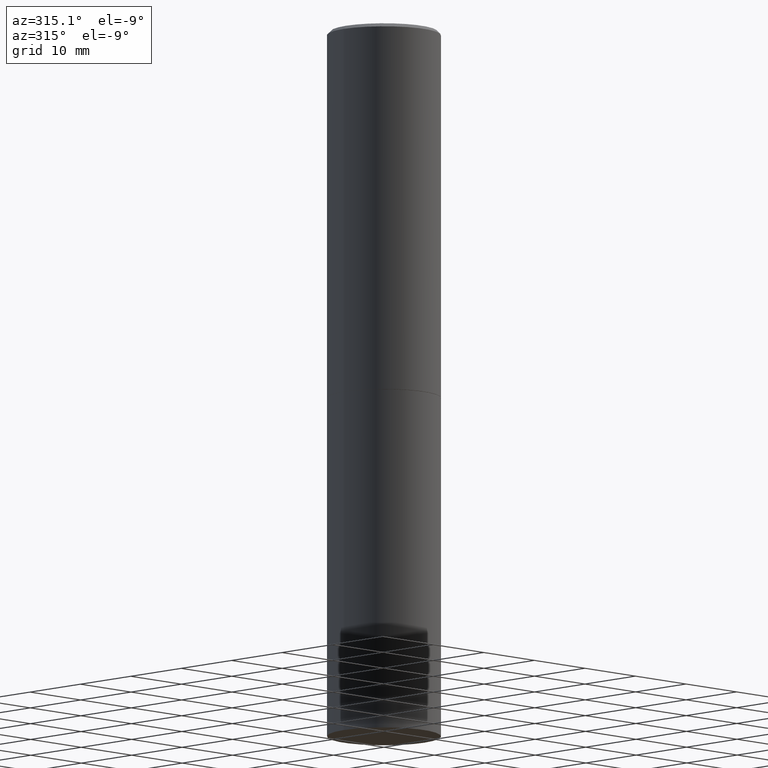
[diagram: clean part render]
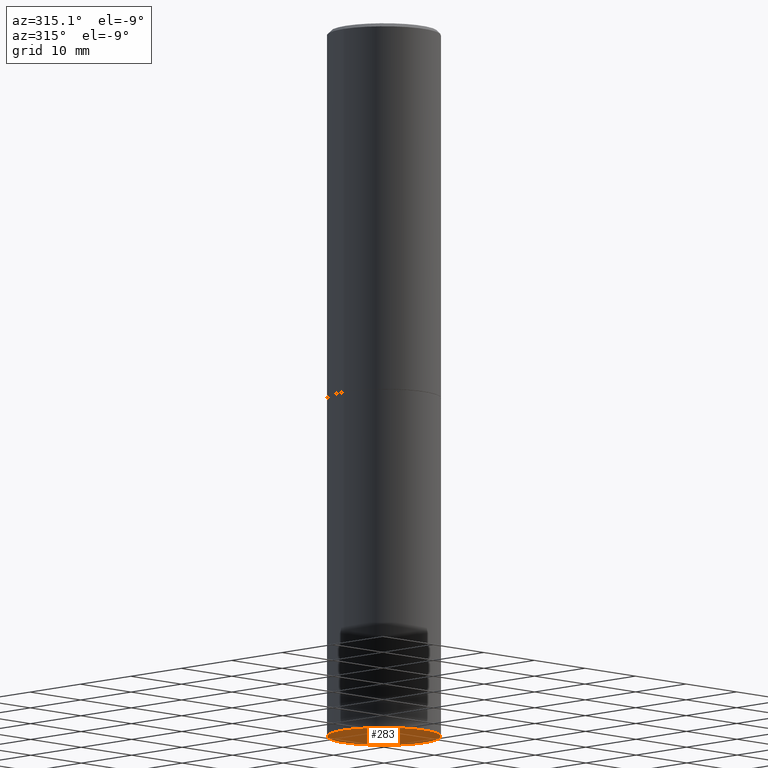
[diagram: same view with one face highlighted and labeled with its STEP entity id]
A machine part, auxiliary view. The second image highlights one B-rep face of the part: STEP entity #283.
In plain terms, the highlighted planar face has unit normal (0, -0, -1).
Its self-contained STEP definition (entity closure, byte-faithful):
#21 = ORIENTED_EDGE ( 'NONE', *, *, #293, .F. ) ;
#36 = DIRECTION ( 'NONE',  ( 2.438088387897960049E-29, -3.491481338843145188E-15, -1.000000000000000000 ) ) ;
#63 = FACE_OUTER_BOUND ( 'NONE', #140, .T. ) ;
#67 = VERTEX_POINT ( 'NONE', #85 ) ;
#85 = CARTESIAN_POINT ( 'NONE',  ( -0.3149500000000000077, -8.209006967676138246E-15, -3.937000000000000277 ) ) ;
#102 = CIRCLE ( 'NONE', #269, 0.3149500000000000077 ) ;
#135 = DIRECTION ( 'NONE',  ( -2.445468806185136597E-29, 3.491481338843145583E-15, 1.000000000000000000 ) ) ;
#140 = EDGE_LOOP ( 'NONE', ( #202, #21 ) ) ;
#141 = EDGE_CURVE ( 'NONE', #266, #67, #212, .T. ) ;
#149 = DIRECTION ( 'NONE',  ( -2.445468806185136597E-29, 3.491481338843145583E-15, 1.000000000000000000 ) ) ;
#171 = DIRECTION ( 'NONE',  ( -1.000000000000000000, 6.982962677686265922E-15, -4.876176775795935793E-29 ) ) ;
#172 = CARTESIAN_POINT ( 'NONE',  ( 0.3149500000000000077, -1.594524612636275486E-14, -3.937000000000000277 ) ) ;
#180 = AXIS2_PLACEMENT_3D ( 'NONE', #258, #36, #171 ) ;
#202 = ORIENTED_EDGE ( 'NONE', *, *, #141, .F. ) ;
#209 = CARTESIAN_POINT ( 'NONE',  ( 9.627810689950883669E-29, -1.374596203102546341E-14, -3.937000000000000277 ) ) ;
#212 = CIRCLE ( 'NONE', #239, 0.3149500000000000077 ) ;
#239 = AXIS2_PLACEMENT_3D ( 'NONE', #302, #135, #350 ) ;
#255 = PLANE ( 'NONE',  #180 ) ;
#258 = CARTESIAN_POINT ( 'NONE',  ( 2.199284095337385323E-15, 0.3149499999999862965, -3.937000000000001165 ) ) ;
#266 = VERTEX_POINT ( 'NONE', #172 ) ;
#269 = AXIS2_PLACEMENT_3D ( 'NONE', #209, #149, #349 ) ;
#283 = ADVANCED_FACE ( 'NONE', ( #63 ), #255, .T. ) ;
#293 = EDGE_CURVE ( 'NONE', #67, #266, #102, .T. ) ;
#302 = CARTESIAN_POINT ( 'NONE',  ( 9.627810689950883669E-29, -1.374596203102546341E-14, -3.937000000000000277 ) ) ;
#349 = DIRECTION ( 'NONE',  ( 1.000000000000000000, -6.982962677686269866E-15, 0.000000000000000000 ) ) ;
#350 = DIRECTION ( 'NONE',  ( 1.000000000000000000, -6.982962677686269866E-15, 0.000000000000000000 ) ) ;